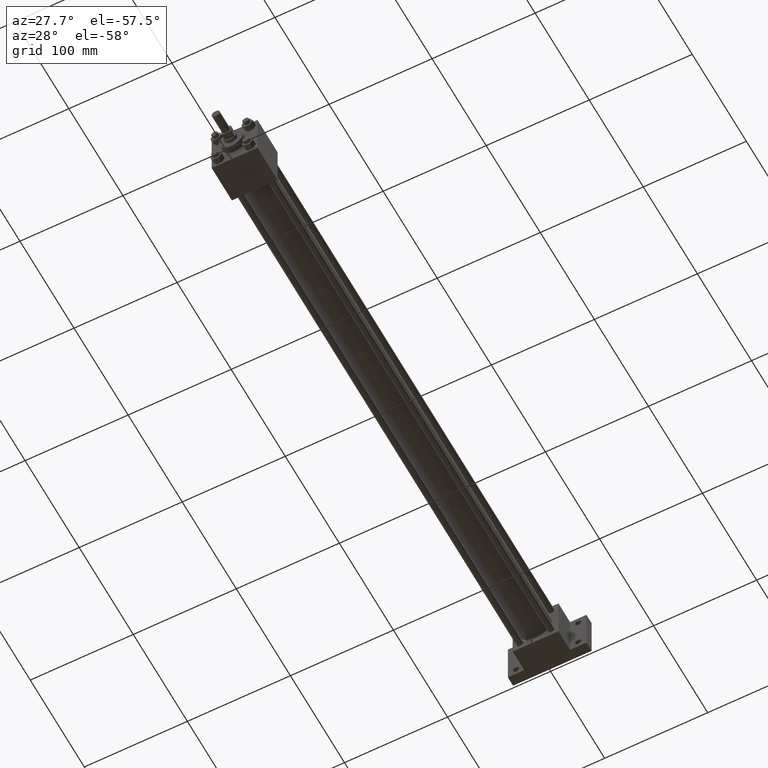
[diagram: clean part render]
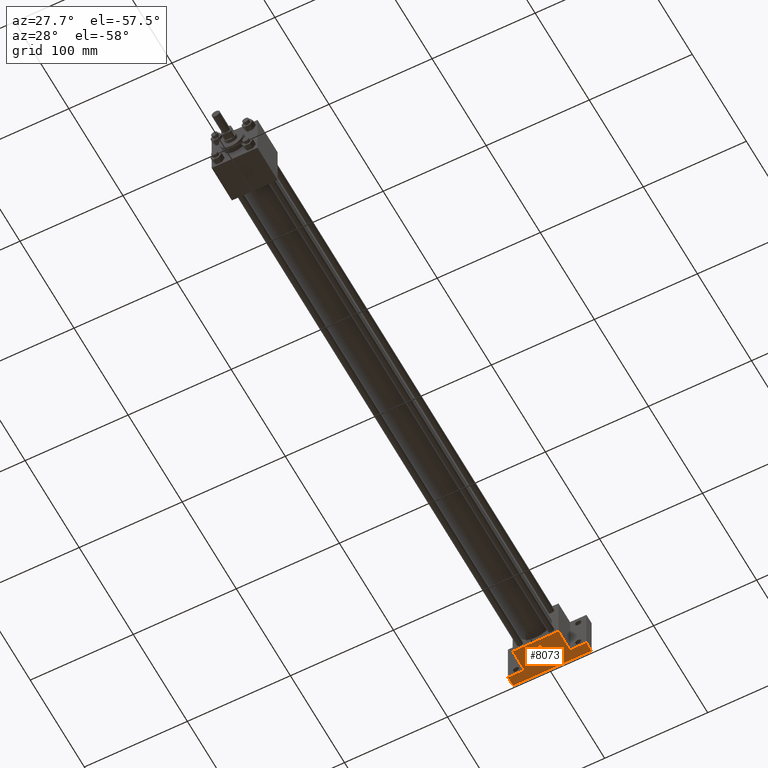
[diagram: same view with one face highlighted and labeled with its STEP entity id]
A machine part, auxiliary view. The second image highlights one B-rep face of the part: STEP entity #8073.
In plain terms, the highlighted planar face has unit normal (0, 0, -1).
Its self-contained STEP definition (entity closure, byte-faithful):
#3425=EDGE_CURVE('',#3430,#3431,#3426,.T.);
#3426=LINE('',#3427,#3428);
#3427=CARTESIAN_POINT('',(-2.222500000E+001,5.722937500E+002,-2.222500000E+001));
#3428=VECTOR('',#3429,1.0E+000);
#3429=DIRECTION('',(1.0E+000,0.0E+000,0.0E+000));
#3430=VERTEX_POINT('',#3432);
#3431=VERTEX_POINT('',#3433);
#3432=CARTESIAN_POINT('',(-2.222500000E+001,5.722937500E+002,-2.222500000E+001));
#3433=CARTESIAN_POINT('',(2.222500000E+001,5.722937500E+002,-2.222500000E+001));
#3486=FACE_OUTER_BOUND('',#3488,.T.);
#3487=FACE_BOUND('',#3489,.T.);
#3488=EDGE_LOOP('',(#3490,#3491,#3492,#3493,#3494,#3495,#3496,#3497));
#3489=EDGE_LOOP('',(#3541));
#3490=ORIENTED_EDGE('',*,*,#3425,.F.);
#3491=ORIENTED_EDGE('',*,*,#3498,.F.);
#3492=ORIENTED_EDGE('',*,*,#3505,.F.);
#3493=ORIENTED_EDGE('',*,*,#3512,.F.);
#3494=ORIENTED_EDGE('',*,*,#3519,.T.);
#3495=ORIENTED_EDGE('',*,*,#3526,.T.);
#3496=ORIENTED_EDGE('',*,*,#3533,.F.);
#3497=ORIENTED_EDGE('',*,*,#3536,.T.);
#3498=EDGE_CURVE('',#3503,#3430,#3499,.T.);
#3499=LINE('',#3500,#3501);
#3500=CARTESIAN_POINT('',(-2.222500000E+001,5.937250000E+002,-2.222500000E+001));
#3501=VECTOR('',#3502,1.0E+000);
#3502=DIRECTION('',(0.0E+000,-1.0E+000,0.0E+000));
#3503=VERTEX_POINT('',#3504);
#3504=CARTESIAN_POINT('',(-2.222500000E+001,5.937250000E+002,-2.222500000E+001));
#3505=EDGE_CURVE('',#3510,#3503,#3506,.T.);
#3506=LINE('',#3507,#3508);
#3507=CARTESIAN_POINT('',(-3.810000000E+001,5.937250000E+002,-2.222500000E+001));
#3508=VECTOR('',#3509,1.0E+000);
#3509=DIRECTION('',(1.0E+000,0.0E+000,0.0E+000));
#3510=VERTEX_POINT('',#3511);
#3511=CARTESIAN_POINT('',(-3.810000000E+001,5.937250000E+002,-2.222500000E+001));
#3512=EDGE_CURVE('',#3517,#3510,#3513,.T.);
#3513=LINE('',#3514,#3515);
#3514=CARTESIAN_POINT('',(-3.810000000E+001,6.032500000E+002,-2.222500000E+001));
#3515=VECTOR('',#3516,1.0E+000);
#3516=DIRECTION('',(0.0E+000,-1.0E+000,0.0E+000));
#3517=VERTEX_POINT('',#3518);
#3518=CARTESIAN_POINT('',(-3.810000000E+001,6.032500000E+002,-2.222500000E+001));
#3519=EDGE_CURVE('',#3517,#3524,#3520,.T.);
#3520=LINE('',#3521,#3522);
#3521=CARTESIAN_POINT('',(-3.810000000E+001,6.032500000E+002,-2.222500000E+001));
#3522=VECTOR('',#3523,1.0E+000);
#3523=DIRECTION('',(1.0E+000,0.0E+000,0.0E+000));
#3524=VERTEX_POINT('',#3525);
#3525=CARTESIAN_POINT('',(3.810000000E+001,6.032500000E+002,-2.222500000E+001));
#3526=EDGE_CURVE('',#3524,#3531,#3527,.T.);
#3527=LINE('',#3528,#3529);
#3528=CARTESIAN_POINT('',(3.810000000E+001,6.032500000E+002,-2.222500000E+001));
#3529=VECTOR('',#3530,1.0E+000);
#3530=DIRECTION('',(0.0E+000,-1.0E+000,0.0E+000));
#3531=VERTEX_POINT('',#3532);
#3532=CARTESIAN_POINT('',(3.810000000E+001,5.937250000E+002,-2.222500000E+001));
#3533=EDGE_CURVE('',#3534,#3531,#3506,.T.);
#3534=VERTEX_POINT('',#3535);
#3535=CARTESIAN_POINT('',(2.222500000E+001,5.937250000E+002,-2.222500000E+001));
#3536=EDGE_CURVE('',#3534,#3431,#3537,.T.);
#3537=LINE('',#3538,#3539);
#3538=CARTESIAN_POINT('',(2.222500000E+001,5.937250000E+002,-2.222500000E+001));
#3539=VECTOR('',#3540,1.0E+000);
#3540=DIRECTION('',(0.0E+000,-1.0E+000,0.0E+000));
#3541=ORIENTED_EDGE('',*,*,#3542,.T.);
#3542=EDGE_CURVE('',#3548,#3548,#3543,.T.);
#3543=CIRCLE('',#3544,2.778125000E+000);
#3544=AXIS2_PLACEMENT_3D('',#3545,#3546,#3547);
#3545=CARTESIAN_POINT('',(0.000000000E+000,5.802312500E+002,-2.222500000E+001));
#3546=DIRECTION('',(0.0E+000,0.0E+000,1.0E+000));
#3547=DIRECTION('',(1.0E+000,0.0E+000,0.0E+000));
#3548=VERTEX_POINT('',#3549);
#3549=CARTESIAN_POINT('',(2.778125000E+000,5.802312500E+002,-2.222500000E+001));
#3550=PLANE('',#3551);
#3551=AXIS2_PLACEMENT_3D('',#3552,#3553,#3554);
#3552=CARTESIAN_POINT('',(-2.222500000E+001,5.937250000E+002,-2.222500000E+001));
#3553=DIRECTION('',(0.0E+000,0.0E+000,-1.0E+000));
#3554=DIRECTION('',(-1.0E+000,0.0E+000,0.0E+000));
#8073=ADVANCED_FACE('',(#3486,#3487),#3550,.T.);